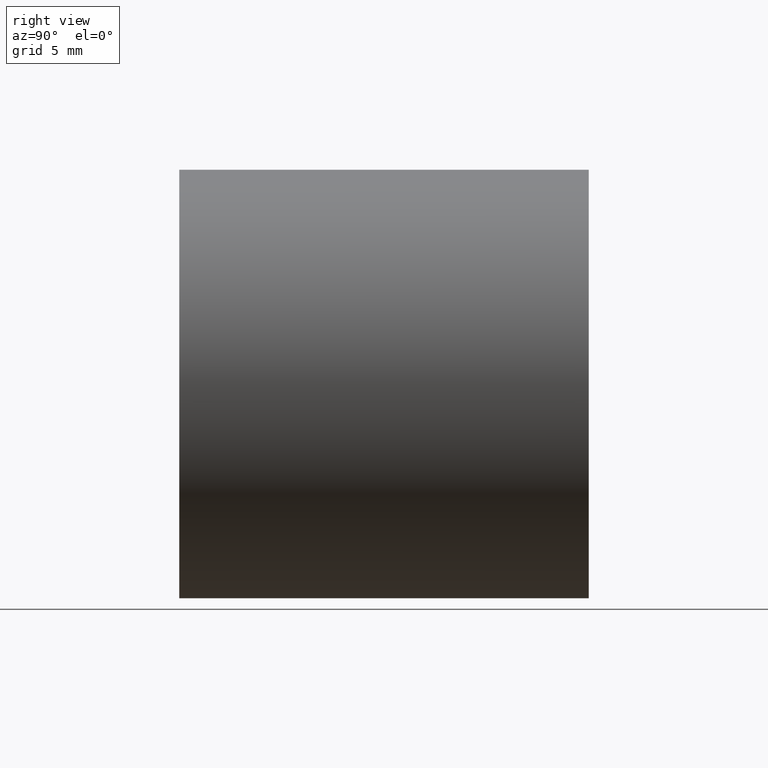
[diagram: clean part render]
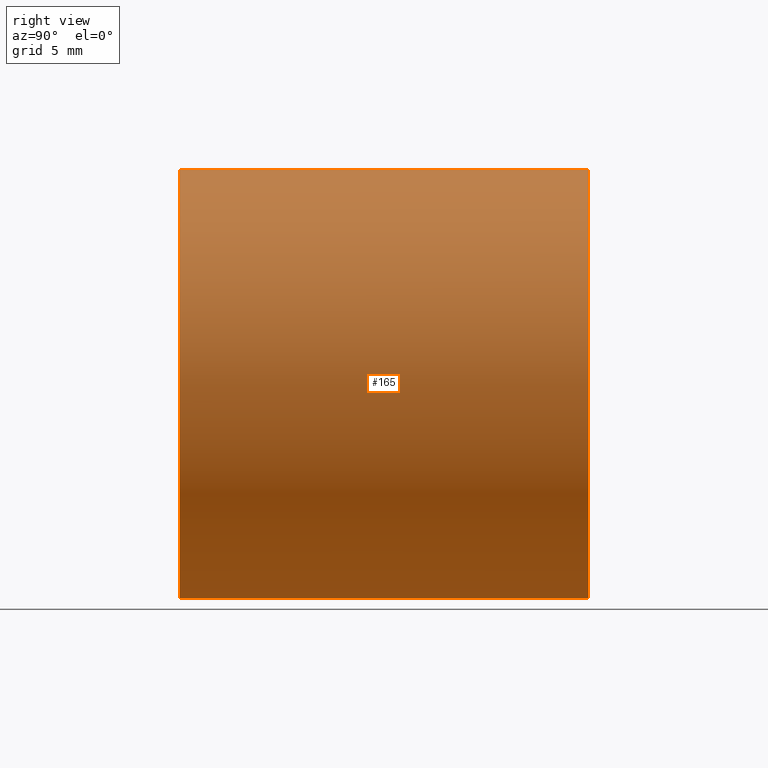
[diagram: same view with one face highlighted and labeled with its STEP entity id]
A machine part, right view. The second image highlights one B-rep face of the part: STEP entity #165.
In plain terms, the highlighted cylindrical surface (partial cylindrical patch) has radius 9.525 mm, axis along (-0, 1, -0).
Its self-contained STEP definition (entity closure, byte-faithful):
#14 = EDGE_LOOP ( 'NONE', ( #491, #321, #194, #463 ) ) ;
#28 = VECTOR ( 'NONE', #561, 1000.000000000000000 ) ;
#41 = EDGE_CURVE ( 'NONE', #113, #316, #405, .T. ) ;
#68 = EDGE_CURVE ( 'NONE', #545, #78, #144, .T. ) ;
#78 = VERTEX_POINT ( 'NONE', #153 ) ;
#96 = LINE ( 'NONE', #615, #28 ) ;
#113 = VERTEX_POINT ( 'NONE', #183 ) ;
#127 = DIRECTION ( 'NONE',  ( 0.0000000000000000000, 0.0000000000000000000, 1.000000000000000000 ) ) ;
#144 = CIRCLE ( 'NONE', #461, 9.525000000000019900 ) ;
#145 = CARTESIAN_POINT ( 'NONE',  ( 0.0000000000000000000, 18.19999999999999600, 9.525000000000019900 ) ) ;
#153 = CARTESIAN_POINT ( 'NONE',  ( 1.166476076187856400E-015, 18.19999999999999600, -9.525000000000019900 ) ) ;
#165 = ADVANCED_FACE ( 'NONE', ( #460 ), #217, .T. ) ;
#178 = CARTESIAN_POINT ( 'NONE',  ( 1.166476076187856400E-015, -2.775557561562891400E-014, -9.525000000000019900 ) ) ;
#180 = VECTOR ( 'NONE', #335, 1000.000000000000000 ) ;
#183 = CARTESIAN_POINT ( 'NONE',  ( 0.0000000000000000000, -2.775557561562891400E-014, 9.525000000000019900 ) ) ;
#194 = ORIENTED_EDGE ( 'NONE', *, *, #68, .F. ) ;
#217 = CYLINDRICAL_SURFACE ( 'NONE', #470, 9.525000000000019900 ) ;
#231 = CARTESIAN_POINT ( 'NONE',  ( 0.0000000000000000000, 161.3761669434274500, 0.0000000000000000000 ) ) ;
#253 = DIRECTION ( 'NONE',  ( -0.0000000000000000000, 1.000000000000000000, -0.0000000000000000000 ) ) ;
#281 = DIRECTION ( 'NONE',  ( -0.0000000000000000000, 1.000000000000000000, -0.0000000000000000000 ) ) ;
#298 = CARTESIAN_POINT ( 'NONE',  ( 0.0000000000000000000, 18.19999999999999600, 0.0000000000000000000 ) ) ;
#316 = VERTEX_POINT ( 'NONE', #178 ) ;
#321 = ORIENTED_EDGE ( 'NONE', *, *, #348, .T. ) ;
#335 = DIRECTION ( 'NONE',  ( -0.0000000000000000000, 1.000000000000000000, -0.0000000000000000000 ) ) ;
#348 = EDGE_CURVE ( 'NONE', #316, #78, #96, .T. ) ;
#355 = DIRECTION ( 'NONE',  ( 0.0000000000000000000, 0.0000000000000000000, 1.000000000000000000 ) ) ;
#373 = EDGE_CURVE ( 'NONE', #113, #545, #403, .T. ) ;
#403 = LINE ( 'NONE', #571, #180 ) ;
#405 = CIRCLE ( 'NONE', #436, 9.525000000000019900 ) ;
#436 = AXIS2_PLACEMENT_3D ( 'NONE', #543, #253, #498 ) ;
#460 = FACE_OUTER_BOUND ( 'NONE', #14, .T. ) ;
#461 = AXIS2_PLACEMENT_3D ( 'NONE', #298, #495, #355 ) ;
#463 = ORIENTED_EDGE ( 'NONE', *, *, #373, .F. ) ;
#470 = AXIS2_PLACEMENT_3D ( 'NONE', #231, #281, #127 ) ;
#491 = ORIENTED_EDGE ( 'NONE', *, *, #41, .T. ) ;
#495 = DIRECTION ( 'NONE',  ( -0.0000000000000000000, 1.000000000000000000, -0.0000000000000000000 ) ) ;
#498 = DIRECTION ( 'NONE',  ( 0.0000000000000000000, 0.0000000000000000000, 1.000000000000000000 ) ) ;
#543 = CARTESIAN_POINT ( 'NONE',  ( 0.0000000000000000000, -2.775557561562891400E-014, 0.0000000000000000000 ) ) ;
#545 = VERTEX_POINT ( 'NONE', #145 ) ;
#561 = DIRECTION ( 'NONE',  ( -0.0000000000000000000, 1.000000000000000000, -0.0000000000000000000 ) ) ;
#571 = CARTESIAN_POINT ( 'NONE',  ( 0.0000000000000000000, 161.3761669434274500, 9.525000000000019900 ) ) ;
#615 = CARTESIAN_POINT ( 'NONE',  ( 1.166476076187856400E-015, 161.3761669434274500, -9.525000000000019900 ) ) ;